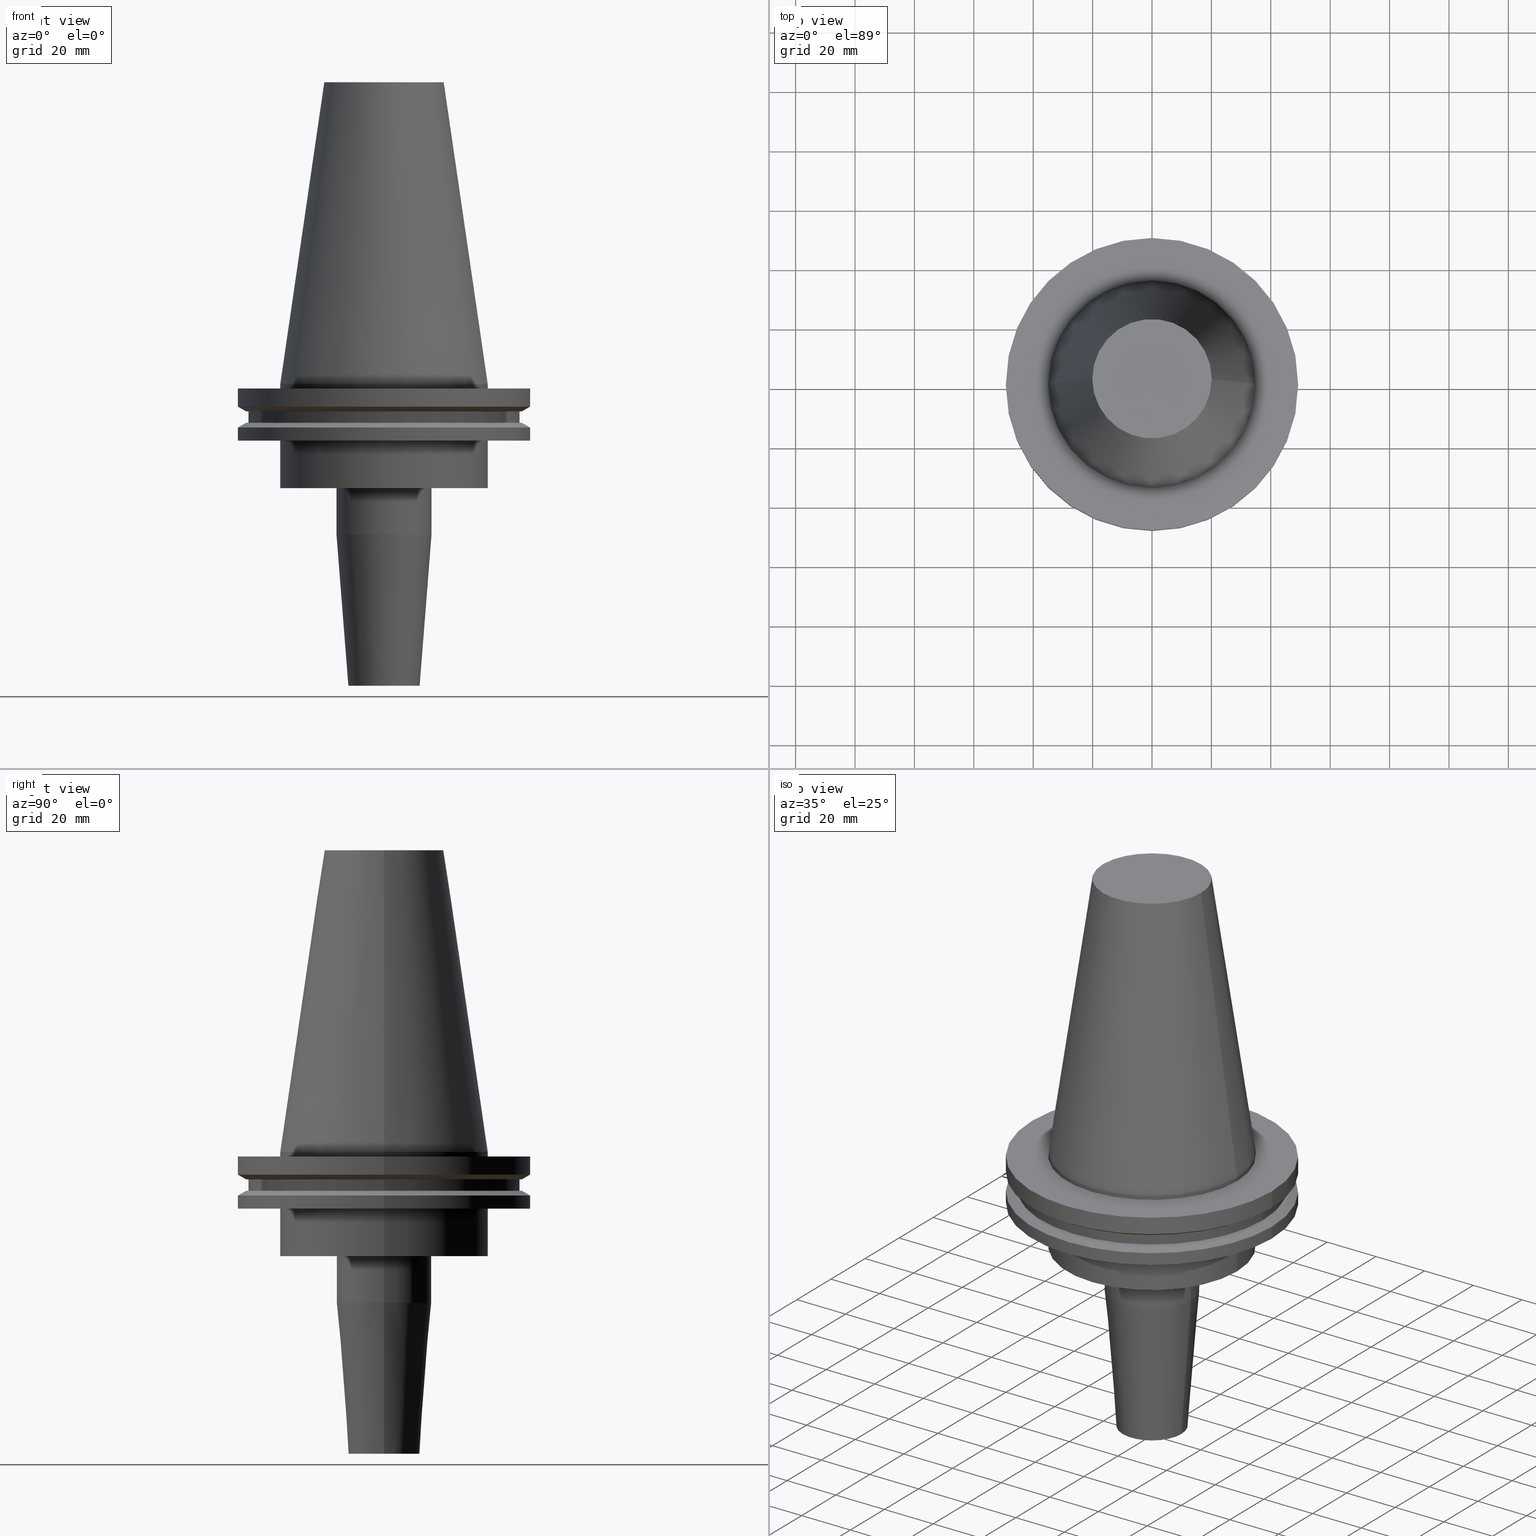
[diagram: canonical four-view strip — front | top / right | iso, engineering-drawing reading convention]
A machine part, canonical four-view strip (front | top / right | iso — engineering-drawing reading convention). The complete STEP part file that produces these views, byte-faithful:
ISO-10303-21;
HEADER;
FILE_DESCRIPTION (( 'STEP AP203' ),
    '1' );
FILE_NAME ('BCV50-SF_500-4.stp',
    '2022-03-03T17:21:24',
    ( '' ),
    ( '' ),
    'SwSTEP 2.0',
    'SolidWorks 2021',
    '' );
FILE_SCHEMA (( 'CONFIG_CONTROL_DESIGN' ));
ENDSEC;

DATA;
#1 = CYLINDRICAL_SURFACE ( 'NONE', #52, 45.64500000000000313 ) ;
#2 = VERTEX_POINT ( 'NONE', #121 ) ;
#3 = CC_DESIGN_DATE_AND_TIME_ASSIGNMENT ( #574, #372, ( #755 ) ) ;
#4 = DIRECTION ( 'NONE',  ( -1.000000000000000000, 0.000000000000000000, -0.000000000000000000 ) ) ;
#5 = DIRECTION ( 'NONE',  ( 1.000000000000000000, 0.000000000000000000, 0.000000000000000000 ) ) ;
#6 = EDGE_LOOP ( 'NONE', ( #558, #585 ) ) ;
#7 = EDGE_CURVE ( 'NONE', #353, #403, #181, .T. ) ;
#8 = LINE ( 'NONE', #396, #208 ) ;
#9 = AXIS2_PLACEMENT_3D ( 'NONE', #426, #35, #78 ) ;
#10 = DIRECTION ( 'NONE',  ( -0.000000000000000000, -0.000000000000000000, 1.000000000000000000 ) ) ;
#11 = AXIS2_PLACEMENT_3D ( 'NONE', #145, #421, #367 ) ;
#12 = FACE_OUTER_BOUND ( 'NONE', #699, .T. ) ;
#13 = EDGE_CURVE ( 'NONE', #395, #793, #770, .T. ) ;
#14 = CARTESIAN_POINT ( 'NONE',  ( 34.92499999999999005, 4.277078946022130098E-15, 0.000000000000000000 ) ) ;
#15 = DIRECTION ( 'NONE',  ( -0.000000000000000000, -0.000000000000000000, 1.000000000000000000 ) ) ;
#16 = FACE_OUTER_BOUND ( 'NONE', #498, .T. ) ;
#17 = ORIENTED_EDGE ( 'NONE', *, *, #332, .F. ) ;
#18 = DIRECTION ( 'NONE',  ( -0.000000000000000000, -0.000000000000000000, 1.000000000000000000 ) ) ;
#19 = SECURITY_CLASSIFICATION ( '', '', #179 ) ;
#20 = ORIENTED_EDGE ( 'NONE', *, *, #829, .T. ) ;
#21 = DIRECTION ( 'NONE',  ( 1.000000000000000000, 0.000000000000000000, 0.000000000000000000 ) ) ;
#22 = DIRECTION ( 'NONE',  ( -0.07845909572783765773, 9.608468044709215241E-18, 0.9969173337331286300 ) ) ;
#23 = ORIENTED_EDGE ( 'NONE', *, *, #320, .T. ) ;
#24 = CARTESIAN_POINT ( 'NONE',  ( 0.000000000000000000, 0.000000000000000000, -50.77518105529640735 ) ) ;
#25 = CIRCLE ( 'NONE', #338, 34.92499999999999005 ) ;
#26 = DIRECTION ( 'NONE',  ( 1.000000000000000000, 0.000000000000000000, 0.000000000000000000 ) ) ;
#27 = EDGE_LOOP ( 'NONE', ( #533, #180, #436, #49 ) ) ;
#28 = AXIS2_PLACEMENT_3D ( 'NONE', #364, #819, #26 ) ;
#29 = EDGE_CURVE ( 'NONE', #781, #205, #513, .T. ) ;
#30 = DIRECTION ( 'NONE',  ( 1.000000000000000000, 0.000000000000000000, 0.000000000000000000 ) ) ;
#31 = ADVANCED_BREP_SHAPE_REPRESENTATION ( 'BCV50-SF_500-4', ( #325, #178 ), #270 ) ;
#32 = DIRECTION ( 'NONE',  ( -0.000000000000000000, -0.000000000000000000, 1.000000000000000000 ) ) ;
#33 = DIRECTION ( 'NONE',  ( -0.000000000000000000, -0.000000000000000000, 1.000000000000000000 ) ) ;
#34 = VERTEX_POINT ( 'NONE', #313 ) ;
#35 = DIRECTION ( 'NONE',  ( -0.000000000000000000, -0.000000000000000000, 1.000000000000000000 ) ) ;
#36 = DIRECTION ( 'NONE',  ( 1.000000000000000000, 0.000000000000000000, 0.000000000000000000 ) ) ;
#37 = DIRECTION ( 'NONE',  ( 1.000000000000000000, 0.000000000000000000, 0.000000000000000000 ) ) ;
#38 = ORIENTED_EDGE ( 'NONE', *, *, #567, .F. ) ;
#39 = CARTESIAN_POINT ( 'NONE',  ( 49.21499999999998920, 6.027099222003697037E-15, -14.65761014474876944 ) ) ;
#40 = PERSON_AND_ORGANIZATION ( #761, #670 ) ;
#41 = EDGE_CURVE ( 'NONE', #315, #841, #452, .T. ) ;
#42 = VERTEX_POINT ( 'NONE', #510 ) ;
#43 = CIRCLE ( 'NONE', #608, 12.00000000000000000 ) ;
#44 = AXIS2_PLACEMENT_3D ( 'NONE', #336, #388, #597 ) ;
#45 = DIRECTION ( 'NONE',  ( -0.000000000000000000, -0.000000000000000000, 1.000000000000000000 ) ) ;
#46 = CALENDAR_DATE ( 2022, 3, 3 ) ;
#47 = VERTEX_POINT ( 'NONE', #768 ) ;
#48 = ORIENTED_EDGE ( 'NONE', *, *, #7, .F. ) ;
#49 = ORIENTED_EDGE ( 'NONE', *, *, #346, .F. ) ;
#50 = VECTOR ( 'NONE', #197, 1000.000000000000000 ) ;
#51 = EDGE_CURVE ( 'NONE', #506, #47, #592, .T. ) ;
#52 = AXIS2_PLACEMENT_3D ( 'NONE', #76, #786, #342 ) ;
#53 = AXIS2_PLACEMENT_3D ( 'NONE', #330, #473, #326 ) ;
#54 = ORIENTED_EDGE ( 'NONE', *, *, #623, .F. ) ;
#55 = VERTEX_POINT ( 'NONE', #470 ) ;
#56 = ORIENTED_EDGE ( 'NONE', *, *, #572, .F. ) ;
#57 = LOCAL_TIME ( 11, 21, 24.00000000000000000, #773 ) ;
#58 = PLANE ( 'NONE',  #826 ) ;
#59 = EDGE_CURVE ( 'NONE', #395, #590, #734, .T. ) ;
#60 = DIRECTION ( 'NONE',  ( -0.000000000000000000, -0.000000000000000000, 1.000000000000000000 ) ) ;
#61 = ORIENTED_EDGE ( 'NONE', *, *, #801, .F. ) ;
#62 = CIRCLE ( 'NONE', #694, 45.64500000000000313 ) ;
#63 = CARTESIAN_POINT ( 'NONE',  ( 49.21499999999999631, 0.000000000000000000, 101.5999999999999943 ) ) ;
#64 = ADVANCED_FACE ( 'NONE', ( #389, #474 ), #536, .F. ) ;
#65 = LINE ( 'NONE', #659, #782 ) ;
#66 = FACE_OUTER_BOUND ( 'NONE', #798, .T. ) ;
#67 = DIRECTION ( 'NONE',  ( 1.000000000000000000, 0.000000000000000000, 0.000000000000000000 ) ) ;
#68 = ORIENTED_EDGE ( 'NONE', *, *, #184, .F. ) ;
#69 = EDGE_CURVE ( 'NONE', #47, #506, #206, .T. ) ;
#70 = DIRECTION ( 'NONE',  ( -0.000000000000000000, -0.000000000000000000, 1.000000000000000000 ) ) ;
#71 = DIRECTION ( 'NONE',  ( 1.000000000000000000, 0.000000000000000000, 0.000000000000000000 ) ) ;
#72 = CC_DESIGN_DATE_AND_TIME_ASSIGNMENT ( #314, #576, ( #19 ) ) ;
#73 = AXIS2_PLACEMENT_3D ( 'NONE', #142, #457, #5 ) ;
#74 = CARTESIAN_POINT ( 'NONE',  ( -16.00000000000000000, 1.959434878635765131E-15, 0.000000000000000000 ) ) ;
#75 = AXIS2_PLACEMENT_3D ( 'NONE', #702, #679, #690 ) ;
#76 = CARTESIAN_POINT ( 'NONE',  ( 0.000000000000000000, 0.000000000000000000, 101.5999999999999943 ) ) ;
#77 = CIRCLE ( 'NONE', #44, 49.21499999999998920 ) ;
#78 = DIRECTION ( 'NONE',  ( 1.000000000000000000, 0.000000000000000000, 0.000000000000000000 ) ) ;
#79 = LINE ( 'NONE', #697, #846 ) ;
#80 = LINE ( 'NONE', #165, #220 ) ;
#81 = CARTESIAN_POINT ( 'NONE',  ( 0.000000000000000000, 0.000000000000000000, 101.5999999999999943 ) ) ;
#82 = ORIENTED_EDGE ( 'NONE', *, *, #617, .T. ) ;
#83 = PRODUCT_DEFINITION_SHAPE ( 'NONE', 'NONE',  #755 ) ;
#84 = DIRECTION ( 'NONE',  ( 1.000000000000000000, 0.000000000000000000, 0.000000000000000000 ) ) ;
#85 = CARTESIAN_POINT ( 'NONE',  ( 0.000000000000000000, 0.000000000000000000, -1.499999999999987566 ) ) ;
#86 = EDGE_LOOP ( 'NONE', ( #537, #564 ) ) ;
#87 = DIRECTION ( 'NONE',  ( 1.000000000000000000, 0.000000000000000000, 0.000000000000000000 ) ) ;
#88 = EDGE_CURVE ( 'NONE', #55, #288, #718, .T. ) ;
#89 = ORIENTED_EDGE ( 'NONE', *, *, #766, .T. ) ;
#90 = FACE_OUTER_BOUND ( 'NONE', #588, .T. ) ;
#91 = CARTESIAN_POINT ( 'NONE',  ( 45.64500000000000313, 0.000000000000000000, -9.204999999999991189 ) ) ;
#92 = AXIS2_PLACEMENT_3D ( 'NONE', #383, #190, #647 ) ;
#93 = ORIENTED_EDGE ( 'NONE', *, *, #107, .T. ) ;
#94 = FACE_OUTER_BOUND ( 'NONE', #789, .T. ) ;
#95 = APPROVAL ( #713, 'UNSPECIFIED' ) ;
#96 = ORIENTED_EDGE ( 'NONE', *, *, #511, .T. ) ;
#97 = VECTOR ( 'NONE', #106, 1000.000000000000000 ) ;
#98 = CARTESIAN_POINT ( 'NONE',  ( 0.000000000000000000, 0.000000000000000000, 0.000000000000000000 ) ) ;
#99 = DIRECTION ( 'NONE',  ( 1.000000000000000000, 0.000000000000000000, 0.000000000000000000 ) ) ;
#100 = DIRECTION ( 'NONE',  ( -0.000000000000000000, -0.000000000000000000, 1.000000000000000000 ) ) ;
#101 = ORIENTED_EDGE ( 'NONE', *, *, #475, .T. ) ;
#102 = DIRECTION ( 'NONE',  ( -0.000000000000000000, -0.000000000000000000, 1.000000000000000000 ) ) ;
#103 = CARTESIAN_POINT ( 'NONE',  ( -45.64500000000000313, 5.589900314708094957E-15, -13.05499999999999794 ) ) ;
#104 = DIRECTION ( 'NONE',  ( 1.000000000000000000, 0.000000000000000000, 0.000000000000000000 ) ) ;
#105 = ORIENTED_EDGE ( 'NONE', *, *, #475, .F. ) ;
#106 = DIRECTION ( 'NONE',  ( -0.000000000000000000, -0.000000000000000000, 1.000000000000000000 ) ) ;
#107 = EDGE_CURVE ( 'NONE', #403, #793, #593, .T. ) ;
#108 = APPROVAL_DATE_TIME ( #508, #816 ) ;
#109 = ORIENTED_EDGE ( 'NONE', *, *, #404, .F. ) ;
#110 = AXIS2_PLACEMENT_3D ( 'NONE', #402, #394, #211 ) ;
#111 = VECTOR ( 'NONE', #354, 1000.000000000000114 ) ;
#112 = AXIS2_PLACEMENT_3D ( 'NONE', #209, #456, #672 ) ;
#113 = APPROVAL_STATUS ( 'not_yet_approved' ) ;
#114 = EDGE_CURVE ( 'NONE', #390, #115, #708, .T. ) ;
#115 = VERTEX_POINT ( 'NONE', #273 ) ;
#116 = DATE_AND_TIME ( #447, #119 ) ;
#117 = EDGE_CURVE ( 'NONE', #42, #315, #65, .T. ) ;
#118 = ORIENTED_EDGE ( 'NONE', *, *, #117, .F. ) ;
#119 = LOCAL_TIME ( 11, 21, 24.00000000000000000, #445 ) ;
#120 = SHAPE_DEFINITION_REPRESENTATION ( #83, #31 ) ;
#121 = CARTESIAN_POINT ( 'NONE',  ( 20.10819343178871321, 3.369811209154858606E-15, 101.5999999999999801 ) ) ;
#122 = CARTESIAN_POINT ( 'NONE',  ( 0.000000000000000000, 0.000000000000000000, 0.000000000000000000 ) ) ;
#123 = VERTEX_POINT ( 'NONE', #277 ) ;
#124 = EDGE_CURVE ( 'NONE', #450, #841, #788, .T. ) ;
#125 = DIRECTION ( 'NONE',  ( -0.8660254037844169472, 0.000000000000000000, -0.5000000000000375255 ) ) ;
#126 = DIRECTION ( 'NONE',  ( -0.000000000000000000, -0.000000000000000000, 1.000000000000000000 ) ) ;
#127 = ORIENTED_EDGE ( 'NONE', *, *, #191, .F. ) ;
#128 = CC_DESIGN_PERSON_AND_ORGANIZATION_ASSIGNMENT ( #442, #839, ( #19 ) ) ;
#129 = FACE_OUTER_BOUND ( 'NONE', #549, .T. ) ;
#130 = CARTESIAN_POINT ( 'NONE',  ( 0.000000000000000000, 0.000000000000000000, -19.04999999999999716 ) ) ;
#131 = VECTOR ( 'NONE', #126, 1000.000000000000000 ) ;
#132 = CIRCLE ( 'NONE', #182, 45.64500000000000313 ) ;
#133 = LINE ( 'NONE', #74, #583 ) ;
#134 = DIRECTION ( 'NONE',  ( 1.000000000000000000, 0.000000000000000000, 0.000000000000000000 ) ) ;
#135 = ADVANCED_FACE ( 'NONE', ( #726 ), #796, .T. ) ;
#136 = ORIENTED_EDGE ( 'NONE', *, *, #567, .T. ) ;
#137 = FACE_BOUND ( 'NONE', #374, .T. ) ;
#138 = CARTESIAN_POINT ( 'NONE',  ( -34.92499999999999005, 0.000000000000000000, 0.000000000000000000 ) ) ;
#139 = ORIENTED_EDGE ( 'NONE', *, *, #124, .F. ) ;
#140 = AXIS2_PLACEMENT_3D ( 'NONE', #85, #226, #232 ) ;
#141 = DIRECTION ( 'NONE',  ( 0.1443082272672999988, 1.767266086135277066E-17, -0.9895327864921755756 ) ) ;
#142 = CARTESIAN_POINT ( 'NONE',  ( 0.000000000000000000, 0.000000000000000000, -101.5999999999999943 ) ) ;
#143 = ORIENTED_EDGE ( 'NONE', *, *, #29, .T. ) ;
#144 = CARTESIAN_POINT ( 'NONE',  ( -34.92499999999999005, 4.277078946022130098E-15, -1.499999999999987566 ) ) ;
#145 = CARTESIAN_POINT ( 'NONE',  ( 0.000000000000000000, 0.000000000000000000, 101.5999999999999943 ) ) ;
#146 = CONICAL_SURFACE ( 'NONE', #75, 12.00000000000000000, 0.07853981633973752818 ) ;
#147 = LINE ( 'NONE', #823, #373 ) ;
#148 = AXIS2_PLACEMENT_3D ( 'NONE', #219, #156, #434 ) ;
#149 = EDGE_LOOP ( 'NONE', ( #255, #808 ) ) ;
#150 = CARTESIAN_POINT ( 'NONE',  ( 6.350000000000001421, 0.000000000000000000, -101.5999999999999943 ) ) ;
#151 = ADVANCED_FACE ( 'NONE', ( #200 ), #398, .F. ) ;
#152 = CYLINDRICAL_SURFACE ( 'NONE', #11, 49.21499999999998920 ) ;
#153 = DIRECTION ( 'NONE',  ( -0.000000000000000000, -0.000000000000000000, 1.000000000000000000 ) ) ;
#154 = ORIENTED_EDGE ( 'NONE', *, *, #801, .T. ) ;
#155 = DIRECTION ( 'NONE',  ( 0.000000000000000000, -0.000000000000000000, 1.000000000000000000 ) ) ;
#156 = DIRECTION ( 'NONE',  ( -0.000000000000000000, -0.000000000000000000, 1.000000000000000000 ) ) ;
#157 = ADVANCED_FACE ( 'NONE', ( #665 ), #382, .T. ) ;
#158 = VERTEX_POINT ( 'NONE', #669 ) ;
#159 = DIRECTION ( 'NONE',  ( 1.000000000000000000, 0.000000000000000000, 0.000000000000000000 ) ) ;
#160 = DIRECTION ( 'NONE',  ( 1.000000000000000000, 0.000000000000000000, 0.000000000000000000 ) ) ;
#161 = VERTEX_POINT ( 'NONE', #525 ) ;
#162 = DIRECTION ( 'NONE',  ( -0.000000000000000000, -0.000000000000000000, 1.000000000000000000 ) ) ;
#163 = LINE ( 'NONE', #356, #169 ) ;
#164 = VECTOR ( 'NONE', #606, 999.9999999999998863 ) ;
#165 = CARTESIAN_POINT ( 'NONE',  ( 6.350000000000004974, 0.000000000000000000, 0.000000000000000000 ) ) ;
#166 = VECTOR ( 'NONE', #750, 1000.000000000000000 ) ;
#167 = ADVANCED_FACE ( 'NONE', ( #598 ), #541, .T. ) ;
#168 = ORIENTED_EDGE ( 'NONE', *, *, #604, .F. ) ;
#169 = VECTOR ( 'NONE', #22, 999.9999999999998863 ) ;
#170 = LINE ( 'NONE', #39, #111 ) ;
#171 = DIRECTION ( 'NONE',  ( -1.000000000000000000, 0.000000000000000000, 0.000000000000000000 ) ) ;
#172 = EDGE_LOOP ( 'NONE', ( #230, #414 ) ) ;
#173 = ADVANCED_FACE ( 'NONE', ( #673 ), #1, .T. ) ;
#174 = CARTESIAN_POINT ( 'NONE',  ( 0.000000000000000000, 0.000000000000000000, 0.000000000000000000 ) ) ;
#175 = PERSON_AND_ORGANIZATION ( #761, #670 ) ;
#176 = DIRECTION ( 'NONE',  ( -0.000000000000000000, -0.000000000000000000, 1.000000000000000000 ) ) ;
#177 = CARTESIAN_POINT ( 'NONE',  ( 0.000000000000000000, 0.000000000000000000, -7.602389855251287187 ) ) ;
#178 = AXIS2_PLACEMENT_3D ( 'NONE', #122, #186, #842 ) ;
#179 = SECURITY_CLASSIFICATION_LEVEL ( 'unclassified' ) ;
#180 = ORIENTED_EDGE ( 'NONE', *, *, #352, .T. ) ;
#181 = CIRCLE ( 'NONE', #92, 46.43919780457007818 ) ;
#182 = AXIS2_PLACEMENT_3D ( 'NONE', #221, #435, #497 ) ;
#183 = CALENDAR_DATE ( 2022, 3, 3 ) ;
#184 = EDGE_CURVE ( 'NONE', #648, #519, #268, .T. ) ;
#185 = ORIENTED_EDGE ( 'NONE', *, *, #691, .F. ) ;
#186 = DIRECTION ( 'NONE',  ( 0.000000000000000000, 0.000000000000000000, 1.000000000000000000 ) ) ;
#187 = ORIENTED_EDGE ( 'NONE', *, *, #579, .F. ) ;
#188 = CIRCLE ( 'NONE', #283, 34.92499999999999716 ) ;
#189 = PERSON_AND_ORGANIZATION ( #761, #670 ) ;
#190 = DIRECTION ( 'NONE',  ( -0.000000000000000000, -0.000000000000000000, 1.000000000000000000 ) ) ;
#191 = EDGE_CURVE ( 'NONE', #42, #491, #25, .T. ) ;
#192 = ORIENTED_EDGE ( 'NONE', *, *, #69, .F. ) ;
#193 = AXIS2_PLACEMENT_3D ( 'NONE', #264, #529, #134 ) ;
#194 = CIRCLE ( 'NONE', #291, 34.92499999999999005 ) ;
#195 = AXIS2_PLACEMENT_3D ( 'NONE', #289, #162, #30 ) ;
#196 = DIRECTION ( 'NONE',  ( -0.000000000000000000, -0.000000000000000000, 1.000000000000000000 ) ) ;
#197 = DIRECTION ( 'NONE',  ( 0.8660254037844273833, 0.000000000000000000, 0.5000000000000195399 ) ) ;
#198 = EDGE_CURVE ( 'NONE', #419, #780, #147, .T. ) ;
#199 = CARTESIAN_POINT ( 'NONE',  ( -49.21499999999999631, 6.027099222003697826E-15, -1.499999999999987566 ) ) ;
#200 = FACE_OUTER_BOUND ( 'NONE', #149, .T. ) ;
#201 = ORIENTED_EDGE ( 'NONE', *, *, #837, .T. ) ;
#202 = AXIS2_PLACEMENT_3D ( 'NONE', #805, #760, #484 ) ;
#203 = LINE ( 'NONE', #668, #340 ) ;
#204 = DIRECTION ( 'NONE',  ( 0.07845909572783765773, 0.000000000000000000, 0.9969173337331286300 ) ) ;
#205 = VERTEX_POINT ( 'NONE', #228 ) ;
#206 = CIRCLE ( 'NONE', #625, 6.350000000000001421 ) ;
#207 = AXIS2_PLACEMENT_3D ( 'NONE', #216, #818, #479 ) ;
#208 = VECTOR ( 'NONE', #196, 1000.000000000000000 ) ;
#209 = CARTESIAN_POINT ( 'NONE',  ( 0.000000000000000000, 0.000000000000000000, -7.602389855251287187 ) ) ;
#210 = CC_DESIGN_PERSON_AND_ORGANIZATION_ASSIGNMENT ( #189, #580, ( #755 ) ) ;
#211 = DIRECTION ( 'NONE',  ( -1.000000000000000000, 0.000000000000000000, -0.000000000000000000 ) ) ;
#212 = DIRECTION ( 'NONE',  ( -0.000000000000000000, -0.000000000000000000, 1.000000000000000000 ) ) ;
#213 = DIRECTION ( 'NONE',  ( 1.000000000000000000, 0.000000000000000000, 0.000000000000000000 ) ) ;
#214 = CARTESIAN_POINT ( 'NONE',  ( 0.000000000000000000, 49.21499999999998920, -19.04999999999999716 ) ) ;
#215 = DIRECTION ( 'NONE',  ( -0.8660254037844273833, 1.060575238724893110E-16, 0.5000000000000195399 ) ) ;
#216 = CARTESIAN_POINT ( 'NONE',  ( 0.000000000000000000, 0.000000000000000000, -65.59999999999999432 ) ) ;
#217 = ORIENTED_EDGE ( 'NONE', *, *, #530, .F. ) ;
#218 = CYLINDRICAL_SURFACE ( 'NONE', #195, 16.00000000000000000 ) ;
#219 = CARTESIAN_POINT ( 'NONE',  ( 0.000000000000000000, 0.000000000000000000, -1.499999999999987566 ) ) ;
#220 = VECTOR ( 'NONE', #18, 1000.000000000000000 ) ;
#221 = CARTESIAN_POINT ( 'NONE',  ( 0.000000000000000000, 0.000000000000000000, -9.204999999999991189 ) ) ;
#222 = AXIS2_PLACEMENT_3D ( 'NONE', #753, #634, #678 ) ;
#223 = VERTEX_POINT ( 'NONE', #503 ) ;
#224 = EDGE_CURVE ( 'NONE', #741, #419, #62, .T. ) ;
#225 = CARTESIAN_POINT ( 'NONE',  ( 16.00000000000000000, 0.000000000000000000, -50.77518105529640735 ) ) ;
#226 = DIRECTION ( 'NONE',  ( -0.000000000000000000, -0.000000000000000000, 1.000000000000000000 ) ) ;
#227 = ORIENTED_EDGE ( 'NONE', *, *, #458, .T. ) ;
#228 = CARTESIAN_POINT ( 'NONE',  ( 34.92499999999999716, 0.000000000000000000, -35.04999999999999716 ) ) ;
#229 = FACE_OUTER_BOUND ( 'NONE', #257, .T. ) ;
#230 = ORIENTED_EDGE ( 'NONE', *, *, #114, .T. ) ;
#231 = CARTESIAN_POINT ( 'NONE',  ( -49.21499999999998920, 6.027099222003697037E-15, -14.65761014474876944 ) ) ;
#232 = DIRECTION ( 'NONE',  ( 1.000000000000000000, 0.000000000000000000, 0.000000000000000000 ) ) ;
#233 = CARTESIAN_POINT ( 'NONE',  ( 0.000000000000000000, 0.000000000000000000, -35.04999999999999716 ) ) ;
#234 = ORIENTED_EDGE ( 'NONE', *, *, #88, .T. ) ;
#235 = DIRECTION ( 'NONE',  ( 1.000000000000000000, 0.000000000000000000, 0.000000000000000000 ) ) ;
#236 =( NAMED_UNIT ( * ) SI_UNIT ( $, .STERADIAN. ) SOLID_ANGLE_UNIT ( ) );
#237 = AXIS2_PLACEMENT_3D ( 'NONE', #835, #45, #250 ) ;
#238 = FACE_OUTER_BOUND ( 'NONE', #278, .T. ) ;
#239 = CC_DESIGN_PERSON_AND_ORGANIZATION_ASSIGNMENT ( #643, #767, ( #577 ) ) ;
#240 = AXIS2_PLACEMENT_3D ( 'NONE', #487, #565, #433 ) ;
#241 = ORIENTED_EDGE ( 'NONE', *, *, #51, .T. ) ;
#242 = AXIS2_PLACEMENT_3D ( 'NONE', #349, #295, #620 ) ;
#243 = DIRECTION ( 'NONE',  ( 1.000000000000000000, 0.000000000000000000, 0.000000000000000000 ) ) ;
#244 = APPROVAL_DATE_TIME ( #306, #252 ) ;
#245 = ORIENTED_EDGE ( 'NONE', *, *, #511, .F. ) ;
#246 = PERSON_AND_ORGANIZATION_ROLE ( 'creator' ) ;
#247 = DIRECTION ( 'NONE',  ( 1.000000000000000000, 0.000000000000000000, 0.000000000000000000 ) ) ;
#248 = EDGE_CURVE ( 'NONE', #115, #390, #626, .T. ) ;
#249 = APPROVAL_ROLE ( '' ) ;
#250 = DIRECTION ( 'NONE',  ( 1.000000000000000000, 0.000000000000000000, 0.000000000000000000 ) ) ;
#251 = AXIS2_PLACEMENT_3D ( 'NONE', #762, #806, #171 ) ;
#252 = APPROVAL ( #831, 'UNSPECIFIED' ) ;
#253 = COORDINATED_UNIVERSAL_TIME_OFFSET ( 6, 0, .BEHIND. ) ;
#254 = DIRECTION ( 'NONE',  ( 1.000000000000000000, 0.000000000000000000, 0.000000000000000000 ) ) ;
#255 = ORIENTED_EDGE ( 'NONE', *, *, #332, .T. ) ;
#256 = EDGE_CURVE ( 'NONE', #519, #34, #413, .T. ) ;
#257 = EDGE_LOOP ( 'NONE', ( #763, #453, #631, #378 ) ) ;
#258 = DIRECTION ( 'NONE',  ( -0.000000000000000000, -0.000000000000000000, 1.000000000000000000 ) ) ;
#259 = PRODUCT_RELATED_PRODUCT_CATEGORY ( 'detail', '', ( #552 ) ) ;
#260 = CARTESIAN_POINT ( 'NONE',  ( 0.000000000000000000, 34.92499999999999716, -35.04999999999999716 ) ) ;
#261 = CIRCLE ( 'NONE', #742, 16.00000000000000000 ) ;
#262 = CIRCLE ( 'NONE', #375, 16.00000000000000000 ) ;
#263 = DIRECTION ( 'NONE',  ( -0.000000000000000000, -0.000000000000000000, 1.000000000000000000 ) ) ;
#264 = CARTESIAN_POINT ( 'NONE',  ( 0.000000000000000000, 0.000000000000000000, -13.05499999999999794 ) ) ;
#265 = EDGE_LOOP ( 'NONE', ( #56, #509, #578, #542 ) ) ;
#266 = EDGE_CURVE ( 'NONE', #47, #681, #568, .T. ) ;
#267 = CARTESIAN_POINT ( 'NONE',  ( -49.21499999999998920, 6.027099222003697037E-15, -19.04999999999999716 ) ) ;
#268 = LINE ( 'NONE', #792, #795 ) ;
#269 = ORIENTED_EDGE ( 'NONE', *, *, #198, .T. ) ;
#270 =( GEOMETRIC_REPRESENTATION_CONTEXT ( 3 ) GLOBAL_UNCERTAINTY_ASSIGNED_CONTEXT ( ( #707 ) ) GLOBAL_UNIT_ASSIGNED_CONTEXT ( ( #350, #561, #236 ) ) REPRESENTATION_CONTEXT ( 'NONE', 'WORKASPACE' ) );
#271 = ADVANCED_FACE ( 'NONE', ( #238 ), #500, .T. ) ;
#272 = CARTESIAN_POINT ( 'NONE',  ( 0.000000000000000000, 12.00000000000000000, -101.5999999999999943 ) ) ;
#273 = CARTESIAN_POINT ( 'NONE',  ( 46.43919780457007818, 5.857130358318725715E-15, -13.05499999999999794 ) ) ;
#274 = CIRCLE ( 'NONE', #9, 20.10819343178871321 ) ;
#275 = VECTOR ( 'NONE', #215, 1000.000000000000000 ) ;
#276 = CYLINDRICAL_SURFACE ( 'NONE', #53, 49.21499999999999631 ) ;
#277 = CARTESIAN_POINT ( 'NONE',  ( -16.00000000000000000, 1.959434878635765131E-15, -35.04999999999999716 ) ) ;
#278 = EDGE_LOOP ( 'NONE', ( #38, #17, #712, #476 ) ) ;
#279 = FACE_OUTER_BOUND ( 'NONE', #265, .T. ) ;
#280 = CYLINDRICAL_SURFACE ( 'NONE', #719, 16.00000000000000000 ) ;
#281 = EDGE_CURVE ( 'NONE', #285, #780, #132, .T. ) ;
#282 = CARTESIAN_POINT ( 'NONE',  ( 0.000000000000000000, 46.43919780457007818, -9.204999999999998295 ) ) ;
#283 = AXIS2_PLACEMENT_3D ( 'NONE', #290, #614, #36 ) ;
#284 = CARTESIAN_POINT ( 'NONE',  ( 0.000000000000000000, 0.000000000000000000, -9.204999999999991189 ) ) ;
#285 = VERTEX_POINT ( 'NONE', #803 ) ;
#286 = DIRECTION ( 'NONE',  ( -1.000000000000000000, 0.000000000000000000, 0.000000000000000000 ) ) ;
#287 = ADVANCED_FACE ( 'NONE', ( #557, #358 ), #363, .F. ) ;
#288 = VERTEX_POINT ( 'NONE', #418 ) ;
#289 = CARTESIAN_POINT ( 'NONE',  ( 0.000000000000000000, 0.000000000000000000, 0.000000000000000000 ) ) ;
#290 = CARTESIAN_POINT ( 'NONE',  ( 0.000000000000000000, 0.000000000000000000, -19.04999999999999716 ) ) ;
#291 = AXIS2_PLACEMENT_3D ( 'NONE', #351, #635, #622 ) ;
#292 = DIRECTION ( 'NONE',  ( 0.000000000000000000, 0.000000000000000000, -1.000000000000000000 ) ) ;
#293 = ORIENTED_EDGE ( 'NONE', *, *, #775, .T. ) ;
#294 = ADVANCED_FACE ( 'NONE', ( #485 ), #146, .T. ) ;
#295 = DIRECTION ( 'NONE',  ( -0.000000000000000000, -0.000000000000000000, 1.000000000000000000 ) ) ;
#296 = CARTESIAN_POINT ( 'NONE',  ( 0.000000000000000000, 0.000000000000000000, -14.65761014474876944 ) ) ;
#297 = CARTESIAN_POINT ( 'NONE',  ( 0.000000000000000000, 0.000000000000000000, 101.5999999999999801 ) ) ;
#298 = DIRECTION ( 'NONE',  ( -0.000000000000000000, -0.000000000000000000, 1.000000000000000000 ) ) ;
#299 = ORIENTED_EDGE ( 'NONE', *, *, #441, .F. ) ;
#300 = FACE_OUTER_BOUND ( 'NONE', #751, .T. ) ;
#301 = CARTESIAN_POINT ( 'NONE',  ( 49.21499999999998920, 0.000000000000000000, -19.04999999999999716 ) ) ;
#302 = CC_DESIGN_APPROVAL ( #95, ( #19 ) ) ;
#303 = DIRECTION ( 'NONE',  ( -0.000000000000000000, -0.000000000000000000, 1.000000000000000000 ) ) ;
#304 = EDGE_LOOP ( 'NONE', ( #89, #82, #584, #727 ) ) ;
#305 = PLANE ( 'NONE',  #695 ) ;
#306 = DATE_AND_TIME ( #183, #589 ) ;
#307 = AXIS2_PLACEMENT_3D ( 'NONE', #407, #60, #67 ) ;
#308 = AXIS2_PLACEMENT_3D ( 'NONE', #613, #366, #822 ) ;
#309 = ORIENTED_EDGE ( 'NONE', *, *, #683, .F. ) ;
#310 = CIRCLE ( 'NONE', #242, 12.00000000000000000 ) ;
#311 = COORDINATED_UNIVERSAL_TIME_OFFSET ( 6, 0, .BEHIND. ) ;
#312 = EDGE_CURVE ( 'NONE', #681, #158, #554, .T. ) ;
#313 = CARTESIAN_POINT ( 'NONE',  ( 16.00000000000000000, 0.000000000000000000, -35.04999999999999716 ) ) ;
#314 = DATE_AND_TIME ( #46, #448 ) ;
#315 = VERTEX_POINT ( 'NONE', #14 ) ;
#316 = ADVANCED_FACE ( 'NONE', ( #812 ), #280, .T. ) ;
#317 = EDGE_LOOP ( 'NONE', ( #462, #154, #703, #845 ) ) ;
#318 = CIRCLE ( 'NONE', #428, 49.21499999999998920 ) ;
#319 = ORIENTED_EDGE ( 'NONE', *, *, #41, .T. ) ;
#320 = EDGE_CURVE ( 'NONE', #506, #158, #80, .T. ) ;
#321 = APPROVAL_ROLE ( '' ) ;
#322 = ORIENTED_EDGE ( 'NONE', *, *, #191, .T. ) ;
#323 = ADVANCED_FACE ( 'NONE', ( #94 ), #481, .T. ) ;
#324 = DIRECTION ( 'NONE',  ( -0.000000000000000000, -0.000000000000000000, 1.000000000000000000 ) ) ;
#325 = MANIFOLD_SOLID_BREP ( 'BA', #642 ) ;
#326 = DIRECTION ( 'NONE',  ( 1.000000000000000000, 0.000000000000000000, 0.000000000000000000 ) ) ;
#327 = DIRECTION ( 'NONE',  ( 1.000000000000000000, 0.000000000000000000, 0.000000000000000000 ) ) ;
#328 = ORIENTED_EDGE ( 'NONE', *, *, #600, .T. ) ;
#329 = AXIS2_PLACEMENT_3D ( 'NONE', #214, #155, #84 ) ;
#330 = CARTESIAN_POINT ( 'NONE',  ( 0.000000000000000000, 0.000000000000000000, 101.5999999999999943 ) ) ;
#331 = DIRECTION ( 'NONE',  ( -0.000000000000000000, -0.000000000000000000, 1.000000000000000000 ) ) ;
#332 = EDGE_CURVE ( 'NONE', #450, #2, #730, .T. ) ;
#333 = EDGE_LOOP ( 'NONE', ( #486, #607, #23, #645 ) ) ;
#334 = CARTESIAN_POINT ( 'NONE',  ( 0.000000000000000000, 0.000000000000000000, -9.204999999999991189 ) ) ;
#335 = DIRECTION ( 'NONE',  ( -0.000000000000000000, -0.000000000000000000, 1.000000000000000000 ) ) ;
#336 = CARTESIAN_POINT ( 'NONE',  ( 0.000000000000000000, 0.000000000000000000, -19.04999999999999716 ) ) ;
#337 = CARTESIAN_POINT ( 'NONE',  ( -49.21499999999999631, 6.027099222003697826E-15, 101.5999999999999943 ) ) ;
#338 = AXIS2_PLACEMENT_3D ( 'NONE', #465, #731, #104 ) ;
#339 = EDGE_CURVE ( 'NONE', #841, #315, #194, .T. ) ;
#340 = VECTOR ( 'NONE', #141, 999.9999999999998863 ) ;
#341 = CARTESIAN_POINT ( 'NONE',  ( 49.21499999999999631, 0.000000000000000000, -1.499999999999987566 ) ) ;
#342 = DIRECTION ( 'NONE',  ( 1.000000000000000000, 0.000000000000000000, 0.000000000000000000 ) ) ;
#343 = FACE_OUTER_BOUND ( 'NONE', #440, .T. ) ;
#344 = FACE_BOUND ( 'NONE', #653, .T. ) ;
#345 = DIRECTION ( 'NONE',  ( 1.000000000000000000, 0.000000000000000000, 0.000000000000000000 ) ) ;
#346 = EDGE_CURVE ( 'NONE', #123, #34, #355, .T. ) ;
#347 = CARTESIAN_POINT ( 'NONE',  ( 0.000000000000000000, 0.000000000000000000, -13.05499999999999794 ) ) ;
#348 = ORIENTED_EDGE ( 'NONE', *, *, #471, .T. ) ;
#349 = CARTESIAN_POINT ( 'NONE',  ( 0.000000000000000000, 0.000000000000000000, -101.5999999999999943 ) ) ;
#350 =( LENGTH_UNIT ( ) NAMED_UNIT ( * ) SI_UNIT ( .MILLI., .METRE. ) );
#351 = CARTESIAN_POINT ( 'NONE',  ( 0.000000000000000000, 0.000000000000000000, 0.000000000000000000 ) ) ;
#352 = EDGE_CURVE ( 'NONE', #551, #519, #261, .T. ) ;
#353 = VERTEX_POINT ( 'NONE', #586 ) ;
#354 = DIRECTION ( 'NONE',  ( 0.8660254037844169472, 1.060575238724880168E-16, -0.5000000000000375255 ) ) ;
#355 = CIRCLE ( 'NONE', #836, 16.00000000000000000 ) ;
#356 = CARTESIAN_POINT ( 'NONE',  ( -12.00000000000000000, 1.469576158976823947E-15, -101.5999999999999943 ) ) ;
#357 = CIRCLE ( 'NONE', #112, 49.21500000000000341 ) ;
#358 = FACE_OUTER_BOUND ( 'NONE', #172, .T. ) ;
#359 = EDGE_LOOP ( 'NONE', ( #217, #444, #432, #599 ) ) ;
#360 = CC_DESIGN_PERSON_AND_ORGANIZATION_ASSIGNMENT ( #710, #512, ( #552 ) ) ;
#361 = DIRECTION ( 'NONE',  ( 1.000000000000000000, 0.000000000000000000, 0.000000000000000000 ) ) ;
#362 = DIRECTION ( 'NONE',  ( -0.000000000000000000, -0.000000000000000000, 1.000000000000000000 ) ) ;
#363 = PLANE ( 'NONE',  #571 ) ;
#364 = CARTESIAN_POINT ( 'NONE',  ( 0.000000000000000000, 0.000000000000000000, 101.5999999999999943 ) ) ;
#365 = EDGE_LOOP ( 'NONE', ( #322, #386, #814, #118 ) ) ;
#366 = DIRECTION ( 'NONE',  ( -0.000000000000000000, -0.000000000000000000, 1.000000000000000000 ) ) ;
#367 = DIRECTION ( 'NONE',  ( 1.000000000000000000, 0.000000000000000000, 0.000000000000000000 ) ) ;
#368 = LOCAL_TIME ( 11, 21, 24.00000000000000000, #311 ) ;
#369 = DIRECTION ( 'NONE',  ( -1.000000000000000000, 0.000000000000000000, -0.000000000000000000 ) ) ;
#370 = EDGE_LOOP ( 'NONE', ( #472, #348, #820, #54 ) ) ;
#371 = CYLINDRICAL_SURFACE ( 'NONE', #838, 6.350000000000004974 ) ;
#372 = DATE_TIME_ROLE ( 'creation_date' ) ;
#373 = VECTOR ( 'NONE', #754, 1000.000000000000000 ) ;
#374 = EDGE_LOOP ( 'NONE', ( #241, #417 ) ) ;
#375 = AXIS2_PLACEMENT_3D ( 'NONE', #412, #32, #817 ) ;
#376 = COORDINATED_UNIVERSAL_TIME_OFFSET ( 6, 0, .BEHIND. ) ;
#377 = EDGE_CURVE ( 'NONE', #515, #161, #467, .T. ) ;
#378 = ORIENTED_EDGE ( 'NONE', *, *, #381, .F. ) ;
#379 = APPROVAL_PERSON_ORGANIZATION ( #40, #816, #520 ) ;
#380 = ORIENTED_EDGE ( 'NONE', *, *, #107, .F. ) ;
#381 = EDGE_CURVE ( 'NONE', #830, #161, #705, .T. ) ;
#382 = CONICAL_SURFACE ( 'NONE', #848, 49.21499999999998920, 1.047197551196554333 ) ;
#383 = CARTESIAN_POINT ( 'NONE',  ( 0.000000000000000000, 0.000000000000000000, -9.204999999999991189 ) ) ;
#384 = CONICAL_SURFACE ( 'NONE', #502, 46.43919780457007818, 1.047197551196575205 ) ;
#385 = ADVANCED_FACE ( 'NONE', ( #343 ), #807, .T. ) ;
#386 = ORIENTED_EDGE ( 'NONE', *, *, #530, .T. ) ;
#387 = ORIENTED_EDGE ( 'NONE', *, *, #714, .T. ) ;
#388 = DIRECTION ( 'NONE',  ( -0.000000000000000000, -0.000000000000000000, 1.000000000000000000 ) ) ;
#389 = FACE_BOUND ( 'NONE', #6, .T. ) ;
#390 = VERTEX_POINT ( 'NONE', #563 ) ;
#391 = CC_DESIGN_APPROVAL ( #816, ( #755 ) ) ;
#392 = FACE_BOUND ( 'NONE', #746, .T. ) ;
#393 = ADVANCED_FACE ( 'NONE', ( #229 ), #680, .T. ) ;
#394 = DIRECTION ( 'NONE',  ( 0.000000000000000000, 0.000000000000000000, -1.000000000000000000 ) ) ;
#395 = VERTEX_POINT ( 'NONE', #482 ) ;
#396 = CARTESIAN_POINT ( 'NONE',  ( 34.92499999999999716, 0.000000000000000000, 101.5999999999999943 ) ) ;
#397 = EDGE_CURVE ( 'NONE', #663, #830, #318, .T. ) ;
#398 = PLANE ( 'NONE',  #110 ) ;
#399 = ORIENTED_EDGE ( 'NONE', *, *, #771, .F. ) ;
#400 = APPLICATION_CONTEXT ( 'configuration controlled 3d designs of mechanical parts and assemblies' ) ;
#401 = FACE_OUTER_BOUND ( 'NONE', #521, .T. ) ;
#402 = CARTESIAN_POINT ( 'NONE',  ( 0.000000000000000000, 20.10819343178871321, 101.5999999999999943 ) ) ;
#403 = VERTEX_POINT ( 'NONE', #802 ) ;
#404 = EDGE_CURVE ( 'NONE', #2, #450, #274, .T. ) ;
#405 = CC_DESIGN_SECURITY_CLASSIFICATION ( #19, ( #577 ) ) ;
#406 = CARTESIAN_POINT ( 'NONE',  ( -49.21499999999998920, 6.027099222003697037E-15, 101.5999999999999943 ) ) ;
#407 = CARTESIAN_POINT ( 'NONE',  ( 0.000000000000000000, 0.000000000000000000, 101.5999999999999943 ) ) ;
#408 = EDGE_LOOP ( 'NONE', ( #399, #706 ) ) ;
#409 = ADVANCED_FACE ( 'NONE', ( #300 ), #454, .T. ) ;
#410 = CARTESIAN_POINT ( 'NONE',  ( -34.92499999999999716, 4.277078946022130887E-15, 101.5999999999999943 ) ) ;
#411 = AXIS2_PLACEMENT_3D ( 'NONE', #98, #810, #361 ) ;
#412 = CARTESIAN_POINT ( 'NONE',  ( 0.000000000000000000, 0.000000000000000000, -50.77518105529640735 ) ) ;
#413 = LINE ( 'NONE', #698, #538 ) ;
#414 = ORIENTED_EDGE ( 'NONE', *, *, #248, .T. ) ;
#415 = FACE_OUTER_BOUND ( 'NONE', #732, .T. ) ;
#416 = DIRECTION ( 'NONE',  ( 1.000000000000000000, 0.000000000000000000, 0.000000000000000000 ) ) ;
#417 = ORIENTED_EDGE ( 'NONE', *, *, #69, .T. ) ;
#418 = CARTESIAN_POINT ( 'NONE',  ( 34.92499999999999716, 0.000000000000000000, -19.04999999999999716 ) ) ;
#419 = VERTEX_POINT ( 'NONE', #543 ) ;
#420 = CYLINDRICAL_SURFACE ( 'NONE', #675, 34.92499999999999005 ) ;
#421 = DIRECTION ( 'NONE',  ( -0.000000000000000000, -0.000000000000000000, 1.000000000000000000 ) ) ;
#422 = ORIENTED_EDGE ( 'NONE', *, *, #312, .T. ) ;
#423 = DIRECTION ( 'NONE',  ( 0.000000000000000000, 0.000000000000000000, -1.000000000000000000 ) ) ;
#424 = ADVANCED_FACE ( 'NONE', ( #415, #499 ), #700, .F. ) ;
#425 = ORIENTED_EDGE ( 'NONE', *, *, #656, .F. ) ;
#426 = CARTESIAN_POINT ( 'NONE',  ( 0.000000000000000000, 0.000000000000000000, 101.5999999999999801 ) ) ;
#427 = AXIS2_PLACEMENT_3D ( 'NONE', #130, #335, #852 ) ;
#428 = AXIS2_PLACEMENT_3D ( 'NONE', #696, #15, #682 ) ;
#429 = CARTESIAN_POINT ( 'NONE',  ( -46.43919780457007818, 5.687161494633754392E-15, -9.204999999999991189 ) ) ;
#430 = CONICAL_SURFACE ( 'NONE', #652, 12.00000000000000000, 0.07853981633973752818 ) ;
#431 = DIRECTION ( 'NONE',  ( -0.000000000000000000, -0.000000000000000000, 1.000000000000000000 ) ) ;
#432 = ORIENTED_EDGE ( 'NONE', *, *, #117, .T. ) ;
#433 = DIRECTION ( 'NONE',  ( -1.000000000000000000, 0.000000000000000000, 0.000000000000000000 ) ) ;
#434 = DIRECTION ( 'NONE',  ( 1.000000000000000000, 0.000000000000000000, 0.000000000000000000 ) ) ;
#435 = DIRECTION ( 'NONE',  ( -0.000000000000000000, -0.000000000000000000, 1.000000000000000000 ) ) ;
#436 = ORIENTED_EDGE ( 'NONE', *, *, #256, .T. ) ;
#437 = EDGE_CURVE ( 'NONE', #648, #223, #43, .T. ) ;
#438 = DIRECTION ( 'NONE',  ( -0.000000000000000000, -0.000000000000000000, 1.000000000000000000 ) ) ;
#439 = DIRECTION ( 'NONE',  ( 1.000000000000000000, 0.000000000000000000, 0.000000000000000000 ) ) ;
#440 = EDGE_LOOP ( 'NONE', ( #446, #636, #686, #105 ) ) ;
#441 = EDGE_CURVE ( 'NONE', #403, #353, #825, .T. ) ;
#442 = PERSON_AND_ORGANIZATION ( #761, #670 ) ;
#443 = CIRCLE ( 'NONE', #308, 49.21499999999999631 ) ;
#444 = ORIENTED_EDGE ( 'NONE', *, *, #683, .T. ) ;
#445 = COORDINATED_UNIVERSAL_TIME_OFFSET ( 6, 0, .BEHIND. ) ;
#446 = ORIENTED_EDGE ( 'NONE', *, *, #59, .F. ) ;
#447 = CALENDAR_DATE ( 2022, 3, 3 ) ;
#448 = LOCAL_TIME ( 11, 21, 24.00000000000000000, #376 ) ;
#449 = CC_DESIGN_PERSON_AND_ORGANIZATION_ASSIGNMENT ( #175, #246, ( #577 ) ) ;
#450 = VERTEX_POINT ( 'NONE', #759 ) ;
#451 = PERSON_AND_ORGANIZATION ( #761, #670 ) ;
#452 = CIRCLE ( 'NONE', #693, 34.92499999999999005 ) ;
#453 = ORIENTED_EDGE ( 'NONE', *, *, #572, .T. ) ;
#454 = CONICAL_SURFACE ( 'NONE', #240, 34.92499999999999005, 0.1448138465474119452 ) ;
#455 = VECTOR ( 'NONE', #855, 1000.000000000000000 ) ;
#456 = DIRECTION ( 'NONE',  ( -0.000000000000000000, -0.000000000000000000, 1.000000000000000000 ) ) ;
#457 = DIRECTION ( 'NONE',  ( -0.000000000000000000, -0.000000000000000000, 1.000000000000000000 ) ) ;
#458 = EDGE_CURVE ( 'NONE', #115, #161, #170, .T. ) ;
#459 = DIRECTION ( 'NONE',  ( 1.000000000000000000, 0.000000000000000000, 0.000000000000000000 ) ) ;
#460 = CARTESIAN_POINT ( 'NONE',  ( 46.43919780457007818, 0.000000000000000000, -9.204999999999991189 ) ) ;
#461 = CIRCLE ( 'NONE', #790, 49.21499999999998920 ) ;
#462 = ORIENTED_EDGE ( 'NONE', *, *, #711, .T. ) ;
#463 = ADVANCED_FACE ( 'NONE', ( #815 ), #420, .T. ) ;
#464 = FACE_OUTER_BOUND ( 'NONE', #774, .T. ) ;
#465 = CARTESIAN_POINT ( 'NONE',  ( 0.000000000000000000, 0.000000000000000000, -1.499999999999987566 ) ) ;
#466 = ORIENTED_EDGE ( 'NONE', *, *, #377, .T. ) ;
#467 = CIRCLE ( 'NONE', #772, 49.21499999999998920 ) ;
#468 = VECTOR ( 'NONE', #70, 1000.000000000000000 ) ;
#469 = DIRECTION ( 'NONE',  ( -0.000000000000000000, -0.000000000000000000, 1.000000000000000000 ) ) ;
#470 = CARTESIAN_POINT ( 'NONE',  ( -34.92499999999999716, 4.277078946022130887E-15, -19.04999999999999716 ) ) ;
#471 = EDGE_CURVE ( 'NONE', #781, #55, #560, .T. ) ;
#472 = ORIENTED_EDGE ( 'NONE', *, *, #779, .T. ) ;
#473 = DIRECTION ( 'NONE',  ( -0.000000000000000000, -0.000000000000000000, 1.000000000000000000 ) ) ;
#474 = FACE_OUTER_BOUND ( 'NONE', #86, .T. ) ;
#475 = EDGE_CURVE ( 'NONE', #590, #655, #443, .T. ) ;
#476 = ORIENTED_EDGE ( 'NONE', *, *, #339, .T. ) ;
#477 = CARTESIAN_POINT ( 'NONE',  ( 0.000000000000000000, 0.000000000000000000, 101.5999999999999943 ) ) ;
#478 = LINE ( 'NONE', #429, #275 ) ;
#479 = DIRECTION ( 'NONE',  ( 1.000000000000000000, 0.000000000000000000, 0.000000000000000000 ) ) ;
#480 = ORIENTED_EDGE ( 'NONE', *, *, #7, .T. ) ;
#481 = CONICAL_SURFACE ( 'NONE', #709, 49.21499999999998920, 1.047197551196554333 ) ;
#482 = CARTESIAN_POINT ( 'NONE',  ( -49.21500000000000341, 6.027099222003699404E-15, -7.602389855251287187 ) ) ;
#483 = CIRCLE ( 'NONE', #609, 45.64500000000000313 ) ;
#484 = DIRECTION ( 'NONE',  ( 1.000000000000000000, 0.000000000000000000, 0.000000000000000000 ) ) ;
#485 = FACE_OUTER_BOUND ( 'NONE', #684, .T. ) ;
#486 = ORIENTED_EDGE ( 'NONE', *, *, #266, .F. ) ;
#487 = CARTESIAN_POINT ( 'NONE',  ( 0.000000000000000000, 0.000000000000000000, 0.000000000000000000 ) ) ;
#488 = DIRECTION ( 'NONE',  ( -0.000000000000000000, -0.000000000000000000, 1.000000000000000000 ) ) ;
#489 = ORIENTED_EDGE ( 'NONE', *, *, #579, .T. ) ;
#490 = CARTESIAN_POINT ( 'NONE',  ( 0.000000000000000000, 45.64500000000000313, -13.05499999999999794 ) ) ;
#491 = VERTEX_POINT ( 'NONE', #144 ) ;
#492 = FACE_OUTER_BOUND ( 'NONE', #776, .T. ) ;
#493 = APPROVAL_PERSON_ORGANIZATION ( #834, #95, #249 ) ;
#494 = DIRECTION ( 'NONE',  ( -0.000000000000000000, -0.000000000000000000, 1.000000000000000000 ) ) ;
#495 = ADVANCED_FACE ( 'NONE', ( #90, #344 ), #637, .F. ) ;
#496 = ORIENTED_EDGE ( 'NONE', *, *, #88, .F. ) ;
#497 = DIRECTION ( 'NONE',  ( 1.000000000000000000, 0.000000000000000000, 0.000000000000000000 ) ) ;
#498 = EDGE_LOOP ( 'NONE', ( #615, #143, #624, #496 ) ) ;
#499 = FACE_BOUND ( 'NONE', #777, .T. ) ;
#500 = CONICAL_SURFACE ( 'NONE', #251, 34.92499999999999005, 0.1448138465474119452 ) ;
#501 = CYLINDRICAL_SURFACE ( 'NONE', #202, 34.92499999999999716 ) ;
#502 = AXIS2_PLACEMENT_3D ( 'NONE', #284, #362, #544 ) ;
#503 = CARTESIAN_POINT ( 'NONE',  ( -12.00000000000000000, 1.714505518806294638E-15, -101.5999999999999943 ) ) ;
#504 = CARTESIAN_POINT ( 'NONE',  ( 49.21499999999998920, 0.000000000000000000, 101.5999999999999943 ) ) ;
#505 = ADVANCED_FACE ( 'NONE', ( #804 ), #218, .T. ) ;
#506 = VERTEX_POINT ( 'NONE', #150 ) ;
#507 = FACE_OUTER_BOUND ( 'NONE', #408, .T. ) ;
#508 = DATE_AND_TIME ( #778, #368 ) ;
#509 = ORIENTED_EDGE ( 'NONE', *, *, #397, .T. ) ;
#510 = CARTESIAN_POINT ( 'NONE',  ( 34.92499999999999005, 0.000000000000000000, -1.499999999999987566 ) ) ;
#511 = EDGE_CURVE ( 'NONE', #223, #648, #310, .T. ) ;
#512 = PERSON_AND_ORGANIZATION_ROLE ( 'design_owner' ) ;
#513 = CIRCLE ( 'NONE', #237, 34.92499999999999716 ) ;
#514 = AXIS2_PLACEMENT_3D ( 'NONE', #550, #431, #685 ) ;
#515 = VERTEX_POINT ( 'NONE', #231 ) ;
#516 = CALENDAR_DATE ( 2022, 3, 3 ) ;
#517 = ADVANCED_FACE ( 'NONE', ( #492 ), #555, .F. ) ;
#518 = ORIENTED_EDGE ( 'NONE', *, *, #711, .F. ) ;
#519 = VERTEX_POINT ( 'NONE', #225 ) ;
#520 = APPROVAL_ROLE ( '' ) ;
#521 = EDGE_LOOP ( 'NONE', ( #671, #480, #93, #721 ) ) ;
#522 = ORIENTED_EDGE ( 'NONE', *, *, #437, .T. ) ;
#523 = DESIGN_CONTEXT ( 'detailed design', #400, 'design' ) ;
#524 = DIRECTION ( 'NONE',  ( 1.000000000000000000, 0.000000000000000000, 0.000000000000000000 ) ) ;
#525 = CARTESIAN_POINT ( 'NONE',  ( 49.21499999999998920, 0.000000000000000000, -14.65761014474876944 ) ) ;
#526 = ADVANCED_FACE ( 'NONE', ( #633 ), #371, .F. ) ;
#527 = CIRCLE ( 'NONE', #148, 34.92499999999999005 ) ;
#528 = PLANE ( 'NONE',  #758 ) ;
#529 = DIRECTION ( 'NONE',  ( -0.000000000000000000, -0.000000000000000000, 1.000000000000000000 ) ) ;
#530 = EDGE_CURVE ( 'NONE', #491, #841, #704, .T. ) ;
#531 = CARTESIAN_POINT ( 'NONE',  ( 0.000000000000000000, 0.000000000000000000, -35.04999999999999716 ) ) ;
#532 = DIRECTION ( 'NONE',  ( 0.000000000000000000, 0.000000000000000000, -1.000000000000000000 ) ) ;
#533 = ORIENTED_EDGE ( 'NONE', *, *, #617, .F. ) ;
#534 = ADVANCED_FACE ( 'NONE', ( #507 ), #305, .F. ) ;
#535 = FACE_OUTER_BOUND ( 'NONE', #317, .T. ) ;
#536 = PLANE ( 'NONE',  #581 ) ;
#537 = ORIENTED_EDGE ( 'NONE', *, *, #779, .F. ) ;
#538 = VECTOR ( 'NONE', #33, 1000.000000000000000 ) ;
#539 = CONICAL_SURFACE ( 'NONE', #627, 46.43919780457007818, 1.047197551196575205 ) ;
#540 = LINE ( 'NONE', #664, #720 ) ;
#541 = CYLINDRICAL_SURFACE ( 'NONE', #757, 34.92499999999999005 ) ;
#542 = ORIENTED_EDGE ( 'NONE', *, *, #377, .F. ) ;
#543 = CARTESIAN_POINT ( 'NONE',  ( 45.64500000000000313, 0.000000000000000000, -13.05499999999999794 ) ) ;
#544 = DIRECTION ( 'NONE',  ( 1.000000000000000000, 0.000000000000000000, 0.000000000000000000 ) ) ;
#545 = DIRECTION ( 'NONE',  ( -0.000000000000000000, -0.000000000000000000, 1.000000000000000000 ) ) ;
#546 = ORIENTED_EDGE ( 'NONE', *, *, #775, .F. ) ;
#547 = DIRECTION ( 'NONE',  ( 0.000000000000000000, -0.000000000000000000, 1.000000000000000000 ) ) ;
#548 = CARTESIAN_POINT ( 'NONE',  ( 0.000000000000000000, 0.000000000000000000, -35.04999999999999716 ) ) ;
#549 = EDGE_LOOP ( 'NONE', ( #489, #587, #546, #425 ) ) ;
#550 = CARTESIAN_POINT ( 'NONE',  ( 0.000000000000000000, 0.000000000000000000, -13.05499999999999794 ) ) ;
#551 = VERTEX_POINT ( 'NONE', #850 ) ;
#552 = PRODUCT ( 'BCV50-SF_500-4', 'BCV50-SF_500-4', '', ( #717 ) ) ;
#553 = ADVANCED_FACE ( 'NONE', ( #401 ), #539, .T. ) ;
#554 = CIRCLE ( 'NONE', #207, 6.350000000000008527 ) ;
#555 = CYLINDRICAL_SURFACE ( 'NONE', #411, 6.350000000000004974 ) ;
#556 = EDGE_LOOP ( 'NONE', ( #518, #660 ) ) ;
#557 = FACE_BOUND ( 'NONE', #556, .T. ) ;
#558 = ORIENTED_EDGE ( 'NONE', *, *, #666, .T. ) ;
#559 = ADVANCED_FACE ( 'NONE', ( #464, #137 ), #528, .F. ) ;
#560 = LINE ( 'NONE', #410, #809 ) ;
#561 =( NAMED_UNIT ( * ) PLANE_ANGLE_UNIT ( ) SI_UNIT ( $, .RADIAN. ) );
#562 = DIRECTION ( 'NONE',  ( -0.000000000000000000, -0.000000000000000000, 1.000000000000000000 ) ) ;
#563 = CARTESIAN_POINT ( 'NONE',  ( -46.43919780457007818, 0.000000000000000000, -13.05499999999999794 ) ) ;
#564 = ORIENTED_EDGE ( 'NONE', *, *, #29, .F. ) ;
#565 = DIRECTION ( 'NONE',  ( 0.000000000000000000, 0.000000000000000000, -1.000000000000000000 ) ) ;
#566 = CARTESIAN_POINT ( 'NONE',  ( -34.92499999999999005, 0.000000000000000000, 0.000000000000000000 ) ) ;
#567 = EDGE_CURVE ( 'NONE', #2, #315, #203, .T. ) ;
#568 = LINE ( 'NONE', #740, #166 ) ;
#569 = ORIENTED_EDGE ( 'NONE', *, *, #184, .T. ) ;
#570 = DIRECTION ( 'NONE',  ( 0.000000000000000000, -0.000000000000000000, 1.000000000000000000 ) ) ;
#571 = AXIS2_PLACEMENT_3D ( 'NONE', #490, #423, #369 ) ;
#572 = EDGE_CURVE ( 'NONE', #663, #515, #787, .T. ) ;
#573 = ORIENTED_EDGE ( 'NONE', *, *, #441, .T. ) ;
#574 = DATE_AND_TIME ( #516, #57 ) ;
#575 = CARTESIAN_POINT ( 'NONE',  ( 0.000000000000000000, 0.000000000000000000, 0.000000000000000000 ) ) ;
#576 = DATE_TIME_ROLE ( 'classification_date' ) ;
#577 = PRODUCT_DEFINITION_FORMATION_WITH_SPECIFIED_SOURCE ( 'ANY', '', #552, .NOT_KNOWN. ) ;
#578 = ORIENTED_EDGE ( 'NONE', *, *, #381, .T. ) ;
#579 = EDGE_CURVE ( 'NONE', #793, #395, #357, .T. ) ;
#580 = PERSON_AND_ORGANIZATION_ROLE ( 'creator' ) ;
#581 = AXIS2_PLACEMENT_3D ( 'NONE', #260, #611, #327 ) ;
#582 = AXIS2_PLACEMENT_3D ( 'NONE', #81, #813, #160 ) ;
#583 = VECTOR ( 'NONE', #657, 1000.000000000000000 ) ;
#584 = ORIENTED_EDGE ( 'NONE', *, *, #666, .F. ) ;
#585 = ORIENTED_EDGE ( 'NONE', *, *, #346, .T. ) ;
#586 = CARTESIAN_POINT ( 'NONE',  ( -46.43919780457007818, 5.857130358318727293E-15, -9.204999999999991189 ) ) ;
#587 = ORIENTED_EDGE ( 'NONE', *, *, #59, .T. ) ;
#588 = EDGE_LOOP ( 'NONE', ( #299, #48 ) ) ;
#589 = LOCAL_TIME ( 11, 21, 24.00000000000000000, #253 ) ;
#590 = VERTEX_POINT ( 'NONE', #199 ) ;
#591 = DIRECTION ( 'NONE',  ( 1.000000000000000000, 0.000000000000000000, 0.000000000000000000 ) ) ;
#592 = CIRCLE ( 'NONE', #73, 6.350000000000001421 ) ;
#593 = LINE ( 'NONE', #460, #50 ) ;
#594 = AXIS2_PLACEMENT_3D ( 'NONE', #687, #102, #752 ) ;
#595 = AXIS2_PLACEMENT_3D ( 'NONE', #739, #701, #345 ) ;
#596 = EDGE_LOOP ( 'NONE', ( #185, #96, #569, #737 ) ) ;
#597 = DIRECTION ( 'NONE',  ( 1.000000000000000000, 0.000000000000000000, 0.000000000000000000 ) ) ;
#598 = FACE_OUTER_BOUND ( 'NONE', #359, .T. ) ;
#599 = ORIENTED_EDGE ( 'NONE', *, *, #339, .F. ) ;
#600 = EDGE_CURVE ( 'NONE', #780, #285, #483, .T. ) ;
#601 = DIRECTION ( 'NONE',  ( 0.000000000000000000, 0.000000000000000000, -1.000000000000000000 ) ) ;
#602 = DIRECTION ( 'NONE',  ( -0.000000000000000000, -0.000000000000000000, 1.000000000000000000 ) ) ;
#603 = ORIENTED_EDGE ( 'NONE', *, *, #646, .T. ) ;
#604 = EDGE_CURVE ( 'NONE', #830, #663, #77, .T. ) ;
#605 = DIRECTION ( 'NONE',  ( 0.000000000000000000, -0.000000000000000000, 1.000000000000000000 ) ) ;
#606 = DIRECTION ( 'NONE',  ( -0.1443082272672999988, 0.000000000000000000, -0.9895327864921755756 ) ) ;
#607 = ORIENTED_EDGE ( 'NONE', *, *, #51, .F. ) ;
#608 = AXIS2_PLACEMENT_3D ( 'NONE', #747, #676, #21 ) ;
#609 = AXIS2_PLACEMENT_3D ( 'NONE', #725, #258, #728 ) ;
#610 = CARTESIAN_POINT ( 'NONE',  ( 0.000000000000000000, 0.000000000000000000, -101.5999999999999943 ) ) ;
#611 = DIRECTION ( 'NONE',  ( 0.000000000000000000, -0.000000000000000000, 1.000000000000000000 ) ) ;
#612 = ORIENTED_EDGE ( 'NONE', *, *, #437, .F. ) ;
#613 = CARTESIAN_POINT ( 'NONE',  ( 0.000000000000000000, 0.000000000000000000, -1.499999999999987566 ) ) ;
#614 = DIRECTION ( 'NONE',  ( -0.000000000000000000, -0.000000000000000000, 1.000000000000000000 ) ) ;
#615 = ORIENTED_EDGE ( 'NONE', *, *, #471, .F. ) ;
#616 = DIRECTION ( 'NONE',  ( 1.000000000000000000, 0.000000000000000000, 0.000000000000000000 ) ) ;
#617 = EDGE_CURVE ( 'NONE', #551, #123, #133, .T. ) ;
#618 = EDGE_LOOP ( 'NONE', ( #824, #227, #201, #692 ) ) ;
#619 = CIRCLE ( 'NONE', #833, 34.92499999999999716 ) ;
#620 = DIRECTION ( 'NONE',  ( 1.000000000000000000, 0.000000000000000000, 0.000000000000000000 ) ) ;
#621 = CARTESIAN_POINT ( 'NONE',  ( 49.21500000000000341, 0.000000000000000000, -7.602389855251287187 ) ) ;
#622 = DIRECTION ( 'NONE',  ( 1.000000000000000000, 0.000000000000000000, 0.000000000000000000 ) ) ;
#623 = EDGE_CURVE ( 'NONE', #205, #288, #8, .T. ) ;
#624 = ORIENTED_EDGE ( 'NONE', *, *, #623, .T. ) ;
#625 = AXIS2_PLACEMENT_3D ( 'NONE', #736, #10, #213 ) ;
#626 = CIRCLE ( 'NONE', #514, 46.43919780457007818 ) ;
#627 = AXIS2_PLACEMENT_3D ( 'NONE', #334, #263, #524 ) ;
#628 = DIRECTION ( 'NONE',  ( 1.000000000000000000, 0.000000000000000000, 0.000000000000000000 ) ) ;
#629 = CARTESIAN_POINT ( 'NONE',  ( -34.92499999999999716, 4.277078946022130887E-15, -35.04999999999999716 ) ) ;
#630 = CARTESIAN_POINT ( 'NONE',  ( 0.000000000000000000, 0.000000000000000000, -14.65761014474876944 ) ) ;
#631 = ORIENTED_EDGE ( 'NONE', *, *, #837, .F. ) ;
#632 = ADVANCED_FACE ( 'NONE', ( #722 ), #430, .T. ) ;
#633 = FACE_OUTER_BOUND ( 'NONE', #333, .T. ) ;
#634 = DIRECTION ( 'NONE',  ( -0.000000000000000000, -0.000000000000000000, 1.000000000000000000 ) ) ;
#635 = DIRECTION ( 'NONE',  ( -0.000000000000000000, -0.000000000000000000, 1.000000000000000000 ) ) ;
#636 = ORIENTED_EDGE ( 'NONE', *, *, #13, .T. ) ;
#637 = PLANE ( 'NONE',  #783 ) ;
#638 = ADVANCED_FACE ( 'NONE', ( #129 ), #276, .T. ) ;
#639 = APPLICATION_PROTOCOL_DEFINITION ( 'international standard', 'config_control_design', 1994, #400 ) ;
#640 = ORIENTED_EDGE ( 'NONE', *, *, #320, .F. ) ;
#641 = CARTESIAN_POINT ( 'NONE',  ( -34.92499999999999005, 4.277078946022130098E-15, 101.5999999999999943 ) ) ;
#642 = CLOSED_SHELL ( 'NONE', ( #517, #294, #316, #463, #638, #749, #677, #157, #393, #135, #409, #271, #151, #64, #853, #424, #729, #323, #287, #173, #495, #553, #385, #654, #167, #505, #632, #559, #526, #534 ) ) ;
#643 = PERSON_AND_ORGANIZATION ( #761, #670 ) ;
#644 = CIRCLE ( 'NONE', #595, 45.64500000000000313 ) ;
#645 = ORIENTED_EDGE ( 'NONE', *, *, #771, .T. ) ;
#646 = EDGE_CURVE ( 'NONE', #390, #515, #540, .T. ) ;
#647 = DIRECTION ( 'NONE',  ( 1.000000000000000000, 0.000000000000000000, 0.000000000000000000 ) ) ;
#648 = VERTEX_POINT ( 'NONE', #784 ) ;
#649 = ORIENTED_EDGE ( 'NONE', *, *, #458, .F. ) ;
#650 = APPROVAL_DATE_TIME ( #116, #95 ) ;
#651 = VECTOR ( 'NONE', #298, 1000.000000000000000 ) ;
#652 = AXIS2_PLACEMENT_3D ( 'NONE', #610, #212, #591 ) ;
#653 = EDGE_LOOP ( 'NONE', ( #328, #854 ) ) ;
#654 = ADVANCED_FACE ( 'NONE', ( #392, #66 ), #58, .F. ) ;
#655 = VERTEX_POINT ( 'NONE', #341 ) ;
#656 = EDGE_CURVE ( 'NONE', #793, #655, #735, .T. ) ;
#657 = DIRECTION ( 'NONE',  ( -0.000000000000000000, -0.000000000000000000, 1.000000000000000000 ) ) ;
#658 = APPROVAL_PERSON_ORGANIZATION ( #451, #252, #321 ) ;
#659 = CARTESIAN_POINT ( 'NONE',  ( 34.92499999999999005, 0.000000000000000000, 101.5999999999999943 ) ) ;
#660 = ORIENTED_EDGE ( 'NONE', *, *, #224, .F. ) ;
#661 = CARTESIAN_POINT ( 'NONE',  ( 0.000000000000000000, 49.21499999999999631, -1.499999999999992895 ) ) ;
#662 = DIRECTION ( 'NONE',  ( -1.000000000000000000, 0.000000000000000000, 0.000000000000000000 ) ) ;
#663 = VERTEX_POINT ( 'NONE', #267 ) ;
#664 = CARTESIAN_POINT ( 'NONE',  ( -49.21499999999998920, 0.000000000000000000, -14.65761014474876944 ) ) ;
#665 = FACE_OUTER_BOUND ( 'NONE', #618, .T. ) ;
#666 = EDGE_CURVE ( 'NONE', #34, #123, #743, .T. ) ;
#667 = ORIENTED_EDGE ( 'NONE', *, *, #691, .T. ) ;
#668 = CARTESIAN_POINT ( 'NONE',  ( 34.92499999999999005, 4.277078946022130098E-15, 0.000000000000000000 ) ) ;
#669 = CARTESIAN_POINT ( 'NONE',  ( 6.350000000000008527, 0.000000000000000000, -65.59999999999999432 ) ) ;
#670 = ORGANIZATION ( 'UNSPECIFIED', 'UNSPECIFIED', '' ) ;
#671 = ORIENTED_EDGE ( 'NONE', *, *, #714, .F. ) ;
#672 = DIRECTION ( 'NONE',  ( 1.000000000000000000, 0.000000000000000000, 0.000000000000000000 ) ) ;
#673 = FACE_OUTER_BOUND ( 'NONE', #756, .T. ) ;
#674 = APPLICATION_CONTEXT ( 'configuration controlled 3d designs of mechanical parts and assemblies' ) ;
#675 = AXIS2_PLACEMENT_3D ( 'NONE', #477, #744, #235 ) ;
#676 = DIRECTION ( 'NONE',  ( -0.000000000000000000, -0.000000000000000000, 1.000000000000000000 ) ) ;
#677 = ADVANCED_FACE ( 'NONE', ( #535 ), #794, .T. ) ;
#678 = DIRECTION ( 'NONE',  ( 1.000000000000000000, 0.000000000000000000, 0.000000000000000000 ) ) ;
#679 = DIRECTION ( 'NONE',  ( -0.000000000000000000, -0.000000000000000000, 1.000000000000000000 ) ) ;
#680 = CYLINDRICAL_SURFACE ( 'NONE', #582, 49.21499999999998920 ) ;
#681 = VERTEX_POINT ( 'NONE', #748 ) ;
#682 = DIRECTION ( 'NONE',  ( 1.000000000000000000, 0.000000000000000000, 0.000000000000000000 ) ) ;
#683 = EDGE_CURVE ( 'NONE', #491, #42, #527, .T. ) ;
#684 = EDGE_LOOP ( 'NONE', ( #522, #667, #765, #68 ) ) ;
#685 = DIRECTION ( 'NONE',  ( 1.000000000000000000, 0.000000000000000000, 0.000000000000000000 ) ) ;
#686 = ORIENTED_EDGE ( 'NONE', *, *, #656, .T. ) ;
#687 = CARTESIAN_POINT ( 'NONE',  ( 0.000000000000000000, 0.000000000000000000, -9.204999999999991189 ) ) ;
#688 = DIRECTION ( 'NONE',  ( -0.000000000000000000, -0.000000000000000000, 1.000000000000000000 ) ) ;
#689 = ORIENTED_EDGE ( 'NONE', *, *, #266, .T. ) ;
#690 = DIRECTION ( 'NONE',  ( 1.000000000000000000, 0.000000000000000000, 0.000000000000000000 ) ) ;
#691 = EDGE_CURVE ( 'NONE', #223, #551, #163, .T. ) ;
#692 = ORIENTED_EDGE ( 'NONE', *, *, #646, .F. ) ;
#693 = AXIS2_PLACEMENT_3D ( 'NONE', #575, #832, #247 ) ;
#694 = AXIS2_PLACEMENT_3D ( 'NONE', #347, #100, #616 ) ;
#695 = AXIS2_PLACEMENT_3D ( 'NONE', #827, #570, #764 ) ;
#696 = CARTESIAN_POINT ( 'NONE',  ( 0.000000000000000000, 0.000000000000000000, -19.04999999999999716 ) ) ;
#697 = CARTESIAN_POINT ( 'NONE',  ( -45.64500000000000313, 5.589900314708094957E-15, 101.5999999999999943 ) ) ;
#698 = CARTESIAN_POINT ( 'NONE',  ( 16.00000000000000000, 0.000000000000000000, 0.000000000000000000 ) ) ;
#699 = EDGE_LOOP ( 'NONE', ( #573, #387, #187, #380 ) ) ;
#700 = PLANE ( 'NONE',  #329 ) ;
#701 = DIRECTION ( 'NONE',  ( -0.000000000000000000, -0.000000000000000000, 1.000000000000000000 ) ) ;
#702 = CARTESIAN_POINT ( 'NONE',  ( 0.000000000000000000, 0.000000000000000000, -101.5999999999999943 ) ) ;
#703 = ORIENTED_EDGE ( 'NONE', *, *, #600, .F. ) ;
#704 = LINE ( 'NONE', #641, #97 ) ;
#705 = LINE ( 'NONE', #504, #651 ) ;
#706 = ORIENTED_EDGE ( 'NONE', *, *, #312, .F. ) ;
#707 = UNCERTAINTY_MEASURE_WITH_UNIT (LENGTH_MEASURE( 1.000000000000000082E-05 ), #350, 'distance_accuracy_value', 'NONE');
#708 = CIRCLE ( 'NONE', #193, 46.43919780457007818 ) ;
#709 = AXIS2_PLACEMENT_3D ( 'NONE', #630, #292, #286 ) ;
#710 = PERSON_AND_ORGANIZATION ( #761, #670 ) ;
#711 = EDGE_CURVE ( 'NONE', #419, #741, #644, .T. ) ;
#712 = ORIENTED_EDGE ( 'NONE', *, *, #124, .T. ) ;
#713 = APPROVAL_STATUS ( 'not_yet_approved' ) ;
#714 = EDGE_CURVE ( 'NONE', #353, #395, #478, .T. ) ;
#715 = ORIENTED_EDGE ( 'NONE', *, *, #114, .F. ) ;
#716 = ORIENTED_EDGE ( 'NONE', *, *, #281, .F. ) ;
#717 = MECHANICAL_CONTEXT ( 'NONE', #674, 'mechanical' ) ;
#718 = CIRCLE ( 'NONE', #427, 34.92499999999999716 ) ;
#719 = AXIS2_PLACEMENT_3D ( 'NONE', #745, #545, #159 ) ;
#720 = VECTOR ( 'NONE', #125, 1000.000000000000114 ) ;
#721 = ORIENTED_EDGE ( 'NONE', *, *, #13, .F. ) ;
#722 = FACE_OUTER_BOUND ( 'NONE', #596, .T. ) ;
#723 = CARTESIAN_POINT ( 'NONE',  ( 0.000000000000000000, 0.000000000000000000, -14.65761014474876944 ) ) ;
#724 = CIRCLE ( 'NONE', #140, 49.21499999999999631 ) ;
#725 = CARTESIAN_POINT ( 'NONE',  ( 0.000000000000000000, 0.000000000000000000, -9.204999999999991189 ) ) ;
#726 = FACE_OUTER_BOUND ( 'NONE', #370, .T. ) ;
#727 = ORIENTED_EDGE ( 'NONE', *, *, #256, .F. ) ;
#728 = DIRECTION ( 'NONE',  ( 1.000000000000000000, 0.000000000000000000, 0.000000000000000000 ) ) ;
#729 = ADVANCED_FACE ( 'NONE', ( #279 ), #152, .T. ) ;
#730 = CIRCLE ( 'NONE', #849, 20.10819343178871321 ) ;
#731 = DIRECTION ( 'NONE',  ( -0.000000000000000000, -0.000000000000000000, 1.000000000000000000 ) ) ;
#732 = EDGE_LOOP ( 'NONE', ( #168, #840 ) ) ;
#733 = CARTESIAN_POINT ( 'NONE',  ( 0.000000000000000000, 0.000000000000000000, 101.5999999999999943 ) ) ;
#734 = LINE ( 'NONE', #337, #131 ) ;
#735 = LINE ( 'NONE', #63, #455 ) ;
#736 = CARTESIAN_POINT ( 'NONE',  ( 0.000000000000000000, 0.000000000000000000, -101.5999999999999943 ) ) ;
#737 = ORIENTED_EDGE ( 'NONE', *, *, #352, .F. ) ;
#738 = DIRECTION ( 'NONE',  ( -0.000000000000000000, -0.000000000000000000, 1.000000000000000000 ) ) ;
#739 = CARTESIAN_POINT ( 'NONE',  ( 0.000000000000000000, 0.000000000000000000, -13.05499999999999794 ) ) ;
#740 = CARTESIAN_POINT ( 'NONE',  ( -6.350000000000004974, 7.776507174585699066E-16, 0.000000000000000000 ) ) ;
#741 = VERTEX_POINT ( 'NONE', #103 ) ;
#742 = AXIS2_PLACEMENT_3D ( 'NONE', #24, #303, #254 ) ;
#743 = CIRCLE ( 'NONE', #785, 16.00000000000000000 ) ;
#744 = DIRECTION ( 'NONE',  ( -0.000000000000000000, -0.000000000000000000, 1.000000000000000000 ) ) ;
#745 = CARTESIAN_POINT ( 'NONE',  ( 0.000000000000000000, 0.000000000000000000, 0.000000000000000000 ) ) ;
#746 = EDGE_LOOP ( 'NONE', ( #127, #309 ) ) ;
#747 = CARTESIAN_POINT ( 'NONE',  ( 0.000000000000000000, 0.000000000000000000, -101.5999999999999943 ) ) ;
#748 = CARTESIAN_POINT ( 'NONE',  ( -6.350000000000007638, 7.776507174585703010E-16, -65.59999999999999432 ) ) ;
#749 = ADVANCED_FACE ( 'NONE', ( #12 ), #384, .T. ) ;
#750 = DIRECTION ( 'NONE',  ( -0.000000000000000000, -0.000000000000000000, 1.000000000000000000 ) ) ;
#751 = EDGE_LOOP ( 'NONE', ( #109, #136, #319, #139 ) ) ;
#752 = DIRECTION ( 'NONE',  ( 1.000000000000000000, 0.000000000000000000, 0.000000000000000000 ) ) ;
#753 = CARTESIAN_POINT ( 'NONE',  ( 0.000000000000000000, 0.000000000000000000, -65.59999999999999432 ) ) ;
#754 = DIRECTION ( 'NONE',  ( -0.000000000000000000, -0.000000000000000000, 1.000000000000000000 ) ) ;
#755 = PRODUCT_DEFINITION ( 'UNKNOWN', '', #577, #523 ) ;
#756 = EDGE_LOOP ( 'NONE', ( #61, #844, #269, #716 ) ) ;
#757 = AXIS2_PLACEMENT_3D ( 'NONE', #800, #602, #71 ) ;
#758 = AXIS2_PLACEMENT_3D ( 'NONE', #272, #605, #459 ) ;
#759 = CARTESIAN_POINT ( 'NONE',  ( -20.10819343178871321, 0.000000000000000000, 101.5999999999999801 ) ) ;
#760 = DIRECTION ( 'NONE',  ( -0.000000000000000000, -0.000000000000000000, 1.000000000000000000 ) ) ;
#761 = PERSON ( 'UNSPECIFIED', 'UNSPECIFIED', 'UNSPECIFIED', ('UNSPECIFIED'), ('UNSPECIFIED'), ('UNSPECIFIED') ) ;
#762 = CARTESIAN_POINT ( 'NONE',  ( 0.000000000000000000, 0.000000000000000000, 0.000000000000000000 ) ) ;
#763 = ORIENTED_EDGE ( 'NONE', *, *, #604, .T. ) ;
#764 = DIRECTION ( 'NONE',  ( 1.000000000000000000, 0.000000000000000000, 0.000000000000000000 ) ) ;
#765 = ORIENTED_EDGE ( 'NONE', *, *, #766, .F. ) ;
#766 = EDGE_CURVE ( 'NONE', #519, #551, #262, .T. ) ;
#767 = PERSON_AND_ORGANIZATION_ROLE ( 'design_supplier' ) ;
#768 = CARTESIAN_POINT ( 'NONE',  ( -6.350000000000001421, 7.776507174585697093E-16, -101.5999999999999943 ) ) ;
#769 = AXIS2_PLACEMENT_3D ( 'NONE', #177, #324, #847 ) ;
#770 = CIRCLE ( 'NONE', #769, 49.21500000000000341 ) ;
#771 = EDGE_CURVE ( 'NONE', #158, #681, #851, .T. ) ;
#772 = AXIS2_PLACEMENT_3D ( 'NONE', #843, #176, #439 ) ;
#773 = COORDINATED_UNIVERSAL_TIME_OFFSET ( 6, 0, .BEHIND. ) ;
#774 = EDGE_LOOP ( 'NONE', ( #612, #245 ) ) ;
#775 = EDGE_CURVE ( 'NONE', #655, #590, #724, .T. ) ;
#776 = EDGE_LOOP ( 'NONE', ( #192, #689, #422, #640 ) ) ;
#777 = EDGE_LOOP ( 'NONE', ( #20, #234 ) ) ;
#778 = CALENDAR_DATE ( 2022, 3, 3 ) ;
#779 = EDGE_CURVE ( 'NONE', #205, #781, #619, .T. ) ;
#780 = VERTEX_POINT ( 'NONE', #91 ) ;
#781 = VERTEX_POINT ( 'NONE', #629 ) ;
#782 = VECTOR ( 'NONE', #331, 1000.000000000000000 ) ;
#783 = AXIS2_PLACEMENT_3D ( 'NONE', #282, #547, #628 ) ;
#784 = CARTESIAN_POINT ( 'NONE',  ( 12.00000000000000000, 0.000000000000000000, -101.5999999999999943 ) ) ;
#785 = AXIS2_PLACEMENT_3D ( 'NONE', #531, #799, #791 ) ;
#786 = DIRECTION ( 'NONE',  ( -0.000000000000000000, -0.000000000000000000, 1.000000000000000000 ) ) ;
#787 = LINE ( 'NONE', #406, #468 ) ;
#788 = LINE ( 'NONE', #138, #164 ) ;
#789 = EDGE_LOOP ( 'NONE', ( #649, #715, #603, #466 ) ) ;
#790 = AXIS2_PLACEMENT_3D ( 'NONE', #296, #494, #416 ) ;
#791 = DIRECTION ( 'NONE',  ( 1.000000000000000000, 0.000000000000000000, 0.000000000000000000 ) ) ;
#792 = CARTESIAN_POINT ( 'NONE',  ( 12.00000000000000000, 0.000000000000000000, -101.5999999999999943 ) ) ;
#793 = VERTEX_POINT ( 'NONE', #621 ) ;
#794 = CYLINDRICAL_SURFACE ( 'NONE', #797, 45.64500000000000313 ) ;
#795 = VECTOR ( 'NONE', #204, 999.9999999999998863 ) ;
#796 = CYLINDRICAL_SURFACE ( 'NONE', #307, 34.92499999999999716 ) ;
#797 = AXIS2_PLACEMENT_3D ( 'NONE', #733, #469, #811 ) ;
#798 = EDGE_LOOP ( 'NONE', ( #293, #101 ) ) ;
#799 = DIRECTION ( 'NONE',  ( -0.000000000000000000, -0.000000000000000000, 1.000000000000000000 ) ) ;
#800 = CARTESIAN_POINT ( 'NONE',  ( 0.000000000000000000, 0.000000000000000000, 101.5999999999999943 ) ) ;
#801 = EDGE_CURVE ( 'NONE', #741, #285, #79, .T. ) ;
#802 = CARTESIAN_POINT ( 'NONE',  ( 46.43919780457007818, 0.000000000000000000, -9.204999999999991189 ) ) ;
#803 = CARTESIAN_POINT ( 'NONE',  ( -45.64500000000000313, 5.589900314708094957E-15, -9.204999999999991189 ) ) ;
#804 = FACE_OUTER_BOUND ( 'NONE', #27, .T. ) ;
#805 = CARTESIAN_POINT ( 'NONE',  ( 0.000000000000000000, 0.000000000000000000, 101.5999999999999943 ) ) ;
#806 = DIRECTION ( 'NONE',  ( 0.000000000000000000, 0.000000000000000000, -1.000000000000000000 ) ) ;
#807 = CYLINDRICAL_SURFACE ( 'NONE', #28, 49.21499999999999631 ) ;
#808 = ORIENTED_EDGE ( 'NONE', *, *, #404, .T. ) ;
#809 = VECTOR ( 'NONE', #738, 1000.000000000000000 ) ;
#810 = DIRECTION ( 'NONE',  ( -0.000000000000000000, -0.000000000000000000, 1.000000000000000000 ) ) ;
#811 = DIRECTION ( 'NONE',  ( 1.000000000000000000, 0.000000000000000000, 0.000000000000000000 ) ) ;
#812 = FACE_OUTER_BOUND ( 'NONE', #304, .T. ) ;
#813 = DIRECTION ( 'NONE',  ( -0.000000000000000000, -0.000000000000000000, 1.000000000000000000 ) ) ;
#814 = ORIENTED_EDGE ( 'NONE', *, *, #41, .F. ) ;
#815 = FACE_OUTER_BOUND ( 'NONE', #365, .T. ) ;
#816 = APPROVAL ( #113, 'UNSPECIFIED' ) ;
#817 = DIRECTION ( 'NONE',  ( 1.000000000000000000, 0.000000000000000000, 0.000000000000000000 ) ) ;
#818 = DIRECTION ( 'NONE',  ( -0.000000000000000000, -0.000000000000000000, 1.000000000000000000 ) ) ;
#819 = DIRECTION ( 'NONE',  ( -0.000000000000000000, -0.000000000000000000, 1.000000000000000000 ) ) ;
#820 = ORIENTED_EDGE ( 'NONE', *, *, #829, .F. ) ;
#821 = CC_DESIGN_APPROVAL ( #252, ( #577 ) ) ;
#822 = DIRECTION ( 'NONE',  ( 1.000000000000000000, 0.000000000000000000, 0.000000000000000000 ) ) ;
#823 = CARTESIAN_POINT ( 'NONE',  ( 45.64500000000000313, 0.000000000000000000, 101.5999999999999943 ) ) ;
#824 = ORIENTED_EDGE ( 'NONE', *, *, #248, .F. ) ;
#825 = CIRCLE ( 'NONE', #594, 46.43919780457007818 ) ;
#826 = AXIS2_PLACEMENT_3D ( 'NONE', #661, #601, #4 ) ;
#827 = CARTESIAN_POINT ( 'NONE',  ( 0.000000000000000000, 6.350000000000008527, -65.59999999999999432 ) ) ;
#828 = APPLICATION_PROTOCOL_DEFINITION ( 'international standard', 'config_control_design', 1994, #674 ) ;
#829 = EDGE_CURVE ( 'NONE', #288, #55, #188, .T. ) ;
#830 = VERTEX_POINT ( 'NONE', #301 ) ;
#831 = APPROVAL_STATUS ( 'not_yet_approved' ) ;
#832 = DIRECTION ( 'NONE',  ( -0.000000000000000000, -0.000000000000000000, 1.000000000000000000 ) ) ;
#833 = AXIS2_PLACEMENT_3D ( 'NONE', #548, #688, #99 ) ;
#834 = PERSON_AND_ORGANIZATION ( #761, #670 ) ;
#835 = CARTESIAN_POINT ( 'NONE',  ( 0.000000000000000000, 0.000000000000000000, -35.04999999999999716 ) ) ;
#836 = AXIS2_PLACEMENT_3D ( 'NONE', #233, #562, #37 ) ;
#837 = EDGE_CURVE ( 'NONE', #161, #515, #461, .T. ) ;
#838 = AXIS2_PLACEMENT_3D ( 'NONE', #174, #438, #243 ) ;
#839 = PERSON_AND_ORGANIZATION_ROLE ( 'classification_officer' ) ;
#840 = ORIENTED_EDGE ( 'NONE', *, *, #397, .F. ) ;
#841 = VERTEX_POINT ( 'NONE', #566 ) ;
#842 = DIRECTION ( 'NONE',  ( 1.000000000000000000, 0.000000000000000000, 0.000000000000000000 ) ) ;
#843 = CARTESIAN_POINT ( 'NONE',  ( 0.000000000000000000, 0.000000000000000000, -14.65761014474876944 ) ) ;
#844 = ORIENTED_EDGE ( 'NONE', *, *, #224, .T. ) ;
#845 = ORIENTED_EDGE ( 'NONE', *, *, #198, .F. ) ;
#846 = VECTOR ( 'NONE', #488, 1000.000000000000000 ) ;
#847 = DIRECTION ( 'NONE',  ( 1.000000000000000000, 0.000000000000000000, 0.000000000000000000 ) ) ;
#848 = AXIS2_PLACEMENT_3D ( 'NONE', #723, #532, #662 ) ;
#849 = AXIS2_PLACEMENT_3D ( 'NONE', #297, #153, #87 ) ;
#850 = CARTESIAN_POINT ( 'NONE',  ( -16.00000000000000000, 1.959434878635765131E-15, -50.77518105529640735 ) ) ;
#851 = CIRCLE ( 'NONE', #222, 6.350000000000008527 ) ;
#852 = DIRECTION ( 'NONE',  ( 1.000000000000000000, 0.000000000000000000, 0.000000000000000000 ) ) ;
#853 = ADVANCED_FACE ( 'NONE', ( #16 ), #501, .T. ) ;
#854 = ORIENTED_EDGE ( 'NONE', *, *, #281, .T. ) ;
#855 = DIRECTION ( 'NONE',  ( -0.000000000000000000, -0.000000000000000000, 1.000000000000000000 ) ) ;
ENDSEC;
END-ISO-10303-21;
